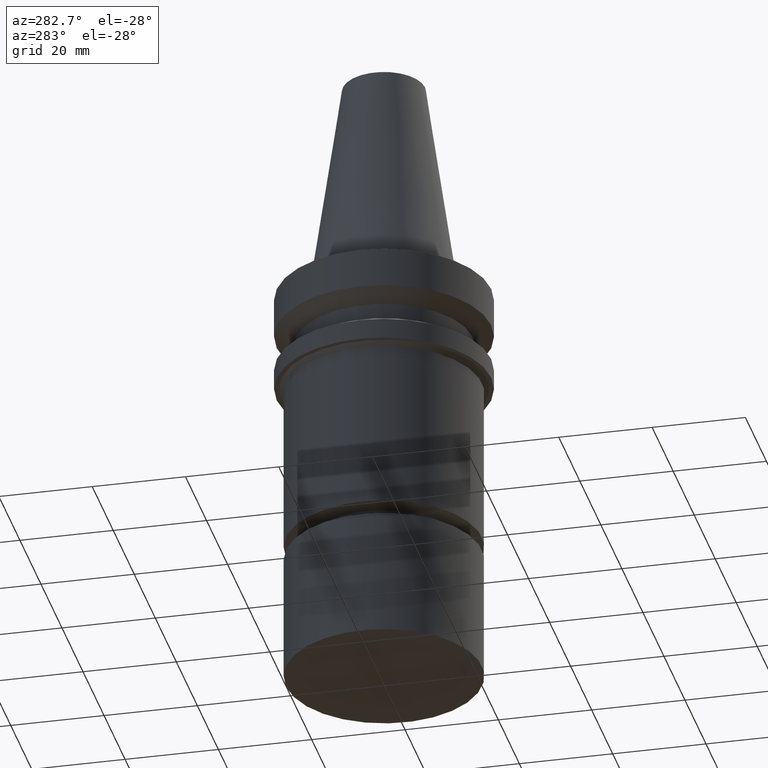
[diagram: clean part render]
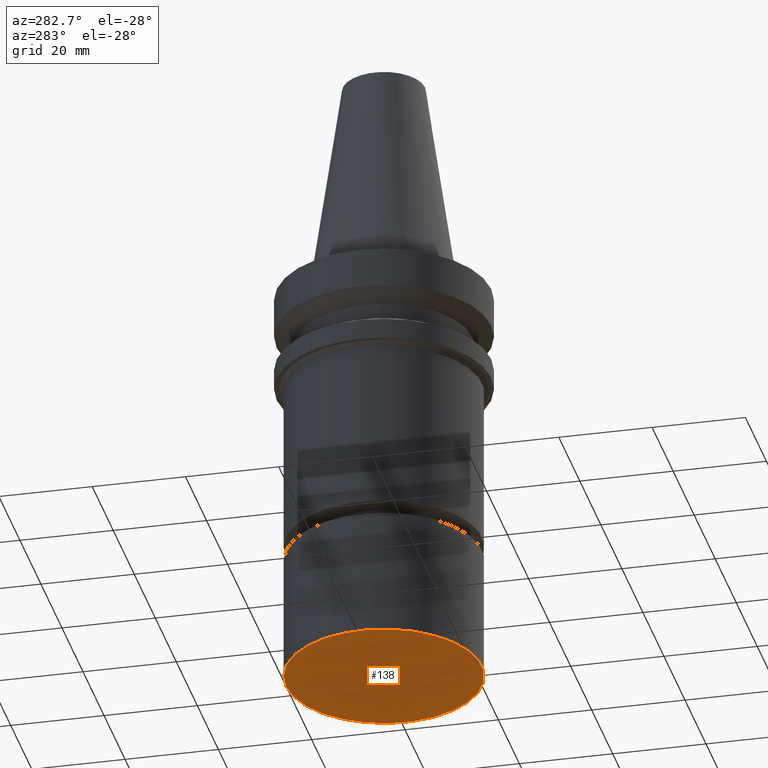
[diagram: same view with one face highlighted and labeled with its STEP entity id]
A machine part, auxiliary view. The second image highlights one B-rep face of the part: STEP entity #138.
In plain terms, the highlighted planar face has unit normal (0, 0, -1).
Its self-contained STEP definition (entity closure, byte-faithful):
#135=EDGE_CURVE('Unnamed[1]',#292,#292,#293,.T.);
#138=ADVANCED_FACE('Unnamed[1]',(#296),#297,.T.);
#292=VERTEX_POINT('',#489);
#293=CIRCLE('',#490,21.0);
#296=FACE_OUTER_BOUND('',#494,.T.);
#297=PLANE('',#495);
#489=CARTESIAN_POINT('',(5.51091059616309E-015,21.0,-90.0));
#490=AXIS2_PLACEMENT_3D('',#679,#680,#681);
#494=EDGE_LOOP('',(#683));
#495=AXIS2_PLACEMENT_3D('',#684,#685,#686);
#679=CARTESIAN_POINT('',(5.51091059616309E-015,1.10218211923262E-014,-90.0));
#680=DIRECTION('',(6.12323399573677E-017,1.22464679914735E-016,-1.0));
#681=DIRECTION('',(-1.23259516440783E-032,1.0,1.22464679914735E-016));
#683=ORIENTED_EDGE('',*,*,#135,.T.);
#684=CARTESIAN_POINT('',(5.51091059616309E-015,10.5,-90.0));
#685=DIRECTION('',(6.12323399573677E-017,1.22464679914735E-016,-1.0));
#686=DIRECTION('',(-1.23259516440783E-032,1.0,1.22464679914735E-016));